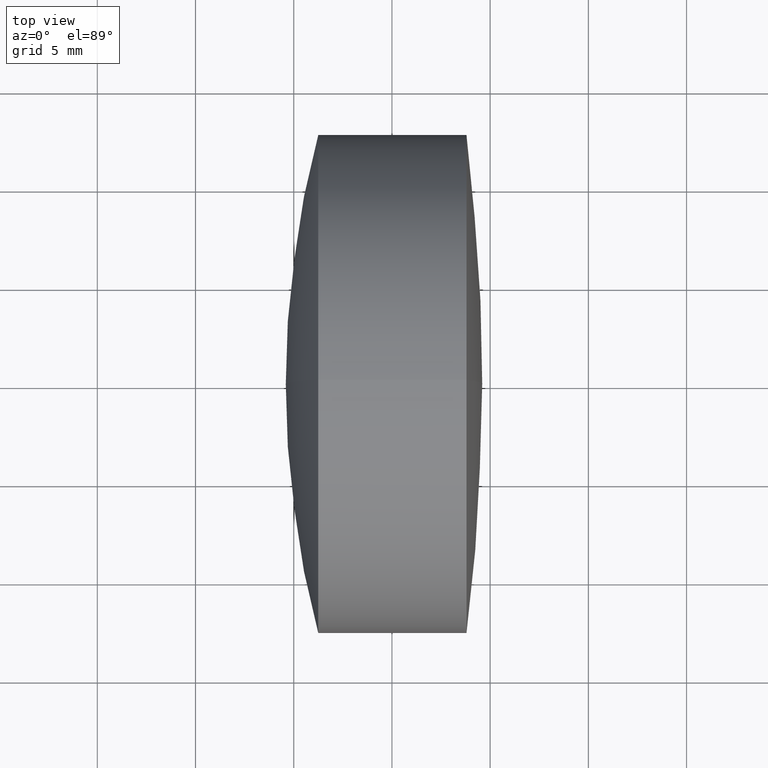
[diagram: clean part render]
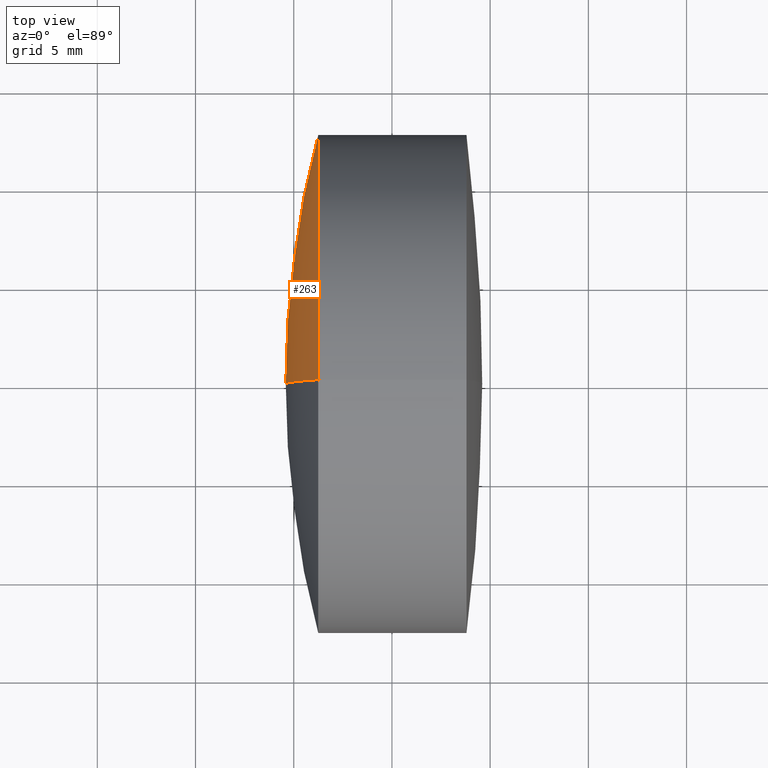
[diagram: same view with one face highlighted and labeled with its STEP entity id]
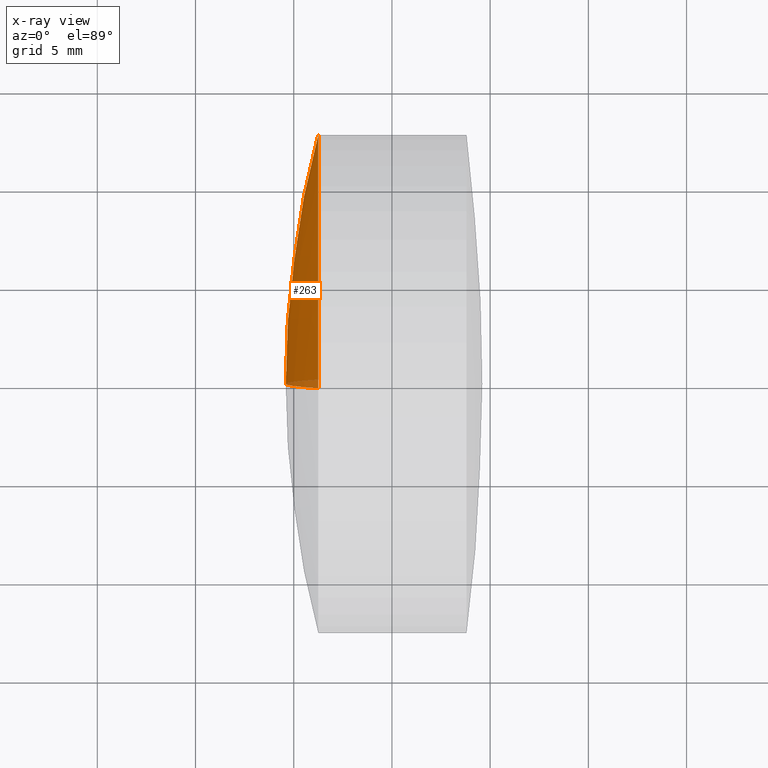
[diagram: x-ray of the same camera — body ghosted, the highlighted face saturated]
A machine part, top view. The second image highlights one B-rep face of the part: STEP entity #263.
The next image is the same camera in x-ray: the body ghosted, the highlighted face saturated — about 3% of this face is hidden behind the body in this view.
In plain terms, the highlighted spherical surface has radius 49.6 mm.
Its self-contained STEP definition (entity closure, byte-faithful):
#4 = CARTESIAN_POINT ( 'NONE',  ( 289.1958458084194500, 0.0000000000000000000, -2.994211294255378400E-015 ) ) ;
#7 = CARTESIAN_POINT ( 'NONE',  ( 289.1958458084194500, 0.0000000000000000000, -2.994211294255378400E-015 ) ) ;
#11 = EDGE_CURVE ( 'NONE', #299, #88, #284, .T. ) ;
#13 = DIRECTION ( 'NONE',  ( 0.0000000000000000000, 0.0000000000000000000, -1.000000000000000000 ) ) ;
#14 = DIRECTION ( 'NONE',  ( 0.0000000000000000000, -1.224646799147353200E-016, 1.000000000000000000 ) ) ;
#17 = CARTESIAN_POINT ( 'NONE',  ( 239.5958458084194800, 0.0000000000000000000, 4.291276763005584700E-017 ) ) ;
#39 = ORIENTED_EDGE ( 'NONE', *, *, #11, .T. ) ;
#43 = AXIS2_PLACEMENT_3D ( 'NONE', #7, #304, #128 ) ;
#60 = DIRECTION ( 'NONE',  ( 0.0000000000000000000, -1.000000000000000000, 0.0000000000000000000 ) ) ;
#64 = CIRCLE ( 'NONE', #311, 49.59999999999997300 ) ;
#83 = VERTEX_POINT ( 'NONE', #223 ) ;
#84 = CARTESIAN_POINT ( 'NONE',  ( 289.1958458084194500, 0.0000000000000000000, -2.994211294255378400E-015 ) ) ;
#85 = DIRECTION ( 'NONE',  ( -0.0000000000000000000, 1.000000000000000000, 1.224646799147353200E-016 ) ) ;
#88 = VERTEX_POINT ( 'NONE', #17 ) ;
#102 = ORIENTED_EDGE ( 'NONE', *, *, #129, .T. ) ;
#107 = AXIS2_PLACEMENT_3D ( 'NONE', #84, #85, #14 ) ;
#108 = ORIENTED_EDGE ( 'NONE', *, *, #149, .F. ) ;
#128 = DIRECTION ( 'NONE',  ( 0.0000000000000000000, 0.0000000000000000000, 1.000000000000000000 ) ) ;
#129 = EDGE_CURVE ( 'NONE', #83, #299, #247, .T. ) ;
#130 = CARTESIAN_POINT ( 'NONE',  ( 241.2493130870641400, 1.555301434917139200E-015, -12.70000000000001000 ) ) ;
#149 = EDGE_CURVE ( 'NONE', #83, #88, #64, .T. ) ;
#174 = SPHERICAL_SURFACE ( 'NONE', #43, 49.59999999999997300 ) ;
#223 = CARTESIAN_POINT ( 'NONE',  ( 241.2493130870641400, 0.0000000000000000000, 12.70000000000000600 ) ) ;
#229 = AXIS2_PLACEMENT_3D ( 'NONE', #334, #337, #338 ) ;
#247 = CIRCLE ( 'NONE', #229, 12.69999999999999600 ) ;
#263 = ADVANCED_FACE ( 'NONE', ( #289 ), #174, .T. ) ;
#284 = CIRCLE ( 'NONE', #107, 49.59999999999997300 ) ;
#285 = EDGE_LOOP ( 'NONE', ( #102, #39, #108 ) ) ;
#289 = FACE_OUTER_BOUND ( 'NONE', #285, .T. ) ;
#299 = VERTEX_POINT ( 'NONE', #130 ) ;
#304 = DIRECTION ( 'NONE',  ( 0.0000000000000000000, 1.000000000000000000, 0.0000000000000000000 ) ) ;
#311 = AXIS2_PLACEMENT_3D ( 'NONE', #4, #60, #13 ) ;
#334 = CARTESIAN_POINT ( 'NONE',  ( 241.2493130870641400, 0.0000000000000000000, 0.0000000000000000000 ) ) ;
#337 = DIRECTION ( 'NONE',  ( -1.000000000000000000, -0.0000000000000000000, -0.0000000000000000000 ) ) ;
#338 = DIRECTION ( 'NONE',  ( 0.0000000000000000000, 0.0000000000000000000, 1.000000000000000000 ) ) ;